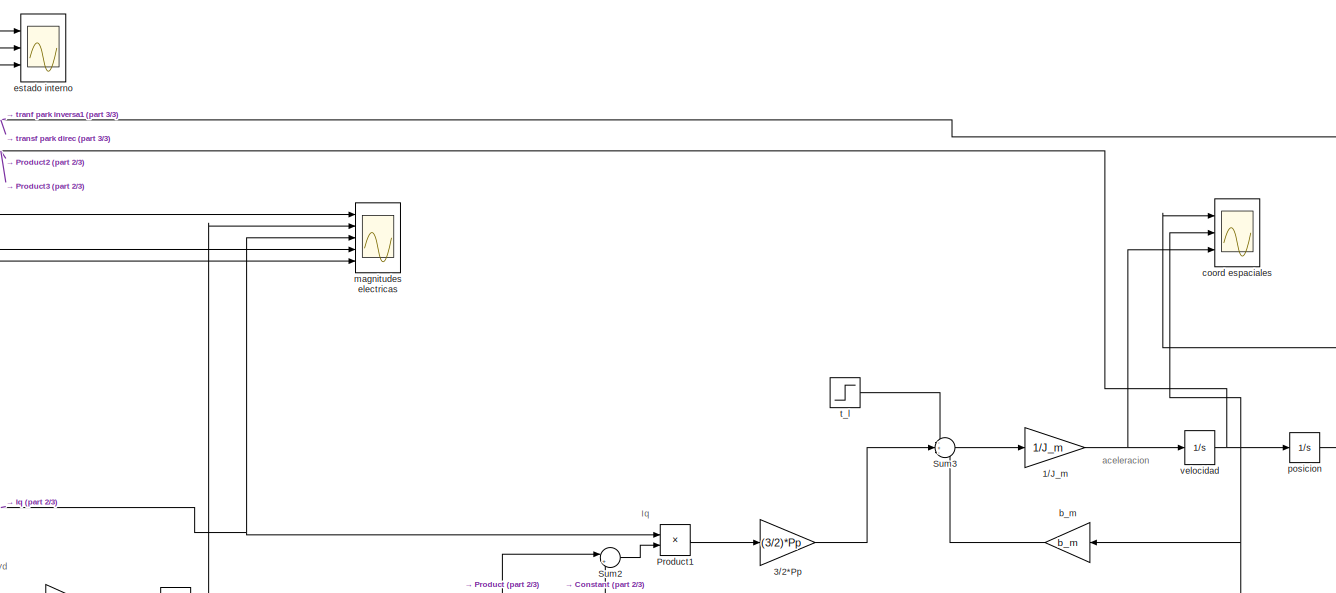
[diagram: root canvas - part 1/3, middle right region]
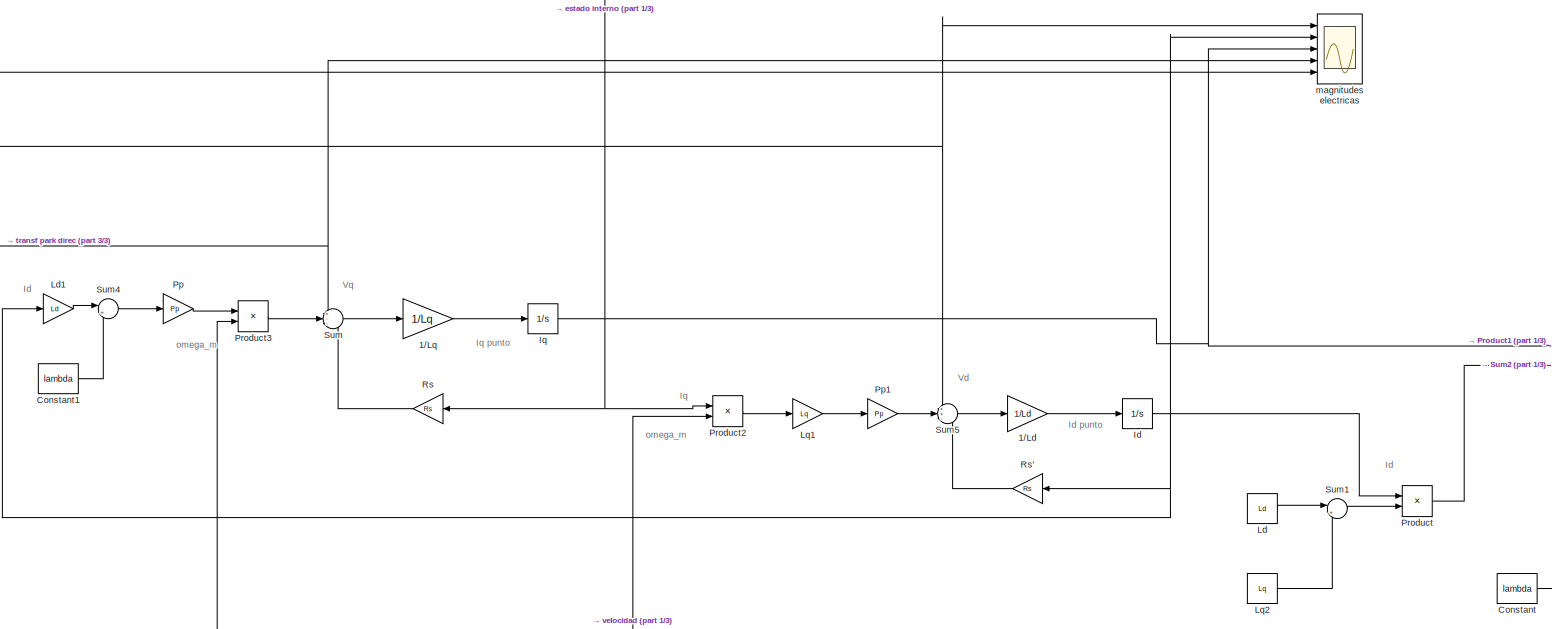
[diagram: root canvas - part 2/3, central region]
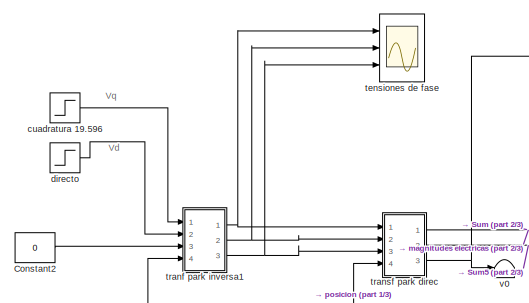
[diagram: root canvas - part 3/3, middle left region]
MODEL slx_2e59009929a7
KIND model
BLOCK [Gain] 1//J_m
  Gain = 1/J_m
  OutDataTypeStr = Inherit: Inherit via internal rule
  ParamDataTypeStr = Inherit: Inherit via internal rule
  SaturateOnIntegerOverflow = off
BLOCK [Gain] 1//Ld
  Gain = 1/Ld
  OutDataTypeStr = Inherit: Inherit via internal rule
  ParamDataTypeStr = Inherit: Inherit via internal rule
  SaturateOnIntegerOverflow = off
BLOCK [Gain] 1//Lq
  Gain = 1/Lq
  OutDataTypeStr = Inherit: Inherit via internal rule
  ParamDataTypeStr = Inherit: Inherit via internal rule
  SaturateOnIntegerOverflow = off
BLOCK [Gain] 3//2*Pp
  Gain = (3/2)*Pp
  OutDataTypeStr = Inherit: Inherit via internal rule
  ParamDataTypeStr = Inherit: Inherit via internal rule
  SaturateOnIntegerOverflow = off
BLOCK [Constant] Constant
  Value = lambda
BLOCK [Constant] Constant1
  Value = lambda
BLOCK [Constant] Constant2
  Value = 0
BLOCK [Integrator] Id
  Ports = [1, 1]
BLOCK [Integrator] Iq
  Ports = [1, 1]
BLOCK [Constant] Ld
  Value = Ld
BLOCK [Gain] Ld1
  Gain = Ld
  OutDataTypeStr = Inherit: Inherit via internal rule
  ParamDataTypeStr = Inherit: Inherit via internal rule
  SaturateOnIntegerOverflow = off
BLOCK [Gain] Lq1
  Gain = Lq
  OutDataTypeStr = Inherit: Inherit via internal rule
  ParamDataTypeStr = Inherit: Inherit via internal rule
  SaturateOnIntegerOverflow = off
BLOCK [Constant] Lq2
  Value = Lq
BLOCK [Gain] Pp
  Gain = Pp
  OutDataTypeStr = Inherit: Inherit via internal rule
  ParamDataTypeStr = Inherit: Inherit via internal rule
  SaturateOnIntegerOverflow = off
BLOCK [Gain] Pp1
  Gain = Pp
  OutDataTypeStr = Inherit: Inherit via internal rule
  ParamDataTypeStr = Inherit: Inherit via internal rule
  SaturateOnIntegerOverflow = off
BLOCK [Product] Product
  InputSameDT = off
  OutDataTypeStr = Inherit: Inherit via internal rule
  Ports = [2, 1]
  SaturateOnIntegerOverflow = off
BLOCK [Product] Product1
  InputSameDT = off
  OutDataTypeStr = Inherit: Inherit via internal rule
  Ports = [2, 1]
  SaturateOnIntegerOverflow = off
BLOCK [Product] Product2
  InputSameDT = off
  OutDataTypeStr = Inherit: Inherit via internal rule
  Ports = [2, 1]
  SaturateOnIntegerOverflow = off
BLOCK [Product] Product3
  InputSameDT = off
  OutDataTypeStr = Inherit: Inherit via internal rule
  Ports = [2, 1]
  SaturateOnIntegerOverflow = off
BLOCK [Gain] Rs
  Gain = Rs
  OutDataTypeStr = Inherit: Inherit via internal rule
  ParamDataTypeStr = Inherit: Inherit via internal rule
  SaturateOnIntegerOverflow = off
BLOCK [Gain] Rs'
  Gain = Rs
  OutDataTypeStr = Inherit: Inherit via internal rule
  ParamDataTypeStr = Inherit: Inherit via internal rule
  SaturateOnIntegerOverflow = off
BLOCK [Sum] Sum
  IconShape = round
  InputSameDT = off
  Inputs = +--
  OutDataTypeStr = Inherit: Inherit via internal rule
  Ports = [3, 1]
  SaturateOnIntegerOverflow = off
BLOCK [Sum] Sum1
  IconShape = round
  InputSameDT = off
  Inputs = |+-
  OutDataTypeStr = Inherit: Inherit via internal rule
  Ports = [2, 1]
  SaturateOnIntegerOverflow = off
BLOCK [Sum] Sum2
  IconShape = round
  InputSameDT = off
  Inputs = |++
  OutDataTypeStr = Inherit: Inherit via internal rule
  Ports = [2, 1]
  SaturateOnIntegerOverflow = off
BLOCK [Sum] Sum3
  IconShape = round
  InputSameDT = off
  Inputs = -+-
  OutDataTypeStr = Inherit: Inherit via internal rule
  Ports = [3, 1]
  SaturateOnIntegerOverflow = off
BLOCK [Sum] Sum4
  IconShape = round
  InputSameDT = off
  Inputs = |++
  OutDataTypeStr = Inherit: Inherit via internal rule
  Ports = [2, 1]
  SaturateOnIntegerOverflow = off
BLOCK [Sum] Sum5
  IconShape = round
  InputSameDT = off
  Inputs = ++-
  OutDataTypeStr = Inherit: Inherit via internal rule
  Ports = [3, 1]
  SaturateOnIntegerOverflow = off
BLOCK [Gain] b_m
  Gain = b_m
  OutDataTypeStr = Inherit: Inherit via internal rule
  ParamDataTypeStr = Inherit: Inherit via internal rule
  SaturateOnIntegerOverflow = off
BLOCK [Scope] coord espaciales
  DataFormat = StructureWithTime
  Floating = off
  LimitDataPoints = off
  MaxDataPoints = 8000
  NumInputPorts = 3
  Ports = [3]
  SampleTime = 0
  SaveName = ScopeData1
  ShowLegends = off
  TimeRange = 12
  YMax = 3000~300~100000
  YMin = -1000~0~-50000
  ZoomMode = yonly
BLOCK [Step] cuadratura 19.596
  After = 19.596
  SampleTime = 0
  Time = 0.1
BLOCK [Step] directo
  After = 0
  SampleTime = 0
BLOCK [Scope] estado interno
  DataFormat = StructureWithTime
  Floating = off
  LimitDataPoints = off
  MaxDataPoints = 8000
  NumInputPorts = 3
  Ports = [3]
  SampleTime = 0
  ShowLegends = off
  TimeRange = 8
  YMax = 3000~400~10
  YMin = -1000~0~-5
  ZoomMode = xonly
BLOCK [Scope] magnitudes electricas
  DataFormat = StructureWithTime
  Floating = off
  LimitDataPoints = off
  MaxDataPoints = 8000
  NumInputPorts = 5
  Ports = [5]
  SampleTime = 0
  SaveName = ScopeData2
  ShowLegends = off
  TimeRange = 8
  YMax = 1~10~10~20~1
  YMin = -1~-3.567183402155509e-28~-10~0~-1
  ZoomMode = yonly
BLOCK [Integrator] posicion
  Ports = [1, 1]
BLOCK [Step] t_l
  After = T_l
  SampleTime = 0
  Time = 0.3
BLOCK [Scope] tensiones de fase
  DataFormat = StructureWithTime
  Floating = off
  LimitDataPoints = off
  MaxDataPoints = 8000
  NumInputPorts = 3
  Ports = [3]
  SampleTime = 0
  SaveName = ScopeData3
  ShowLegends = off
  TimeRange = 8
  YMax = 3000~400~10
  YMin = -1000~0~-5
  ZoomMode = xonly
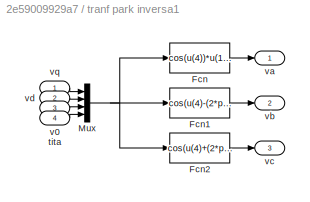
BLOCK [SubSystem] tranf park inversa1
  FunctionWithSeparateData = off
  MaskHideContents = off
  MinAlgLoopOccurrences = off
  Opaque = off
  Ports = [4, 3]
  PropExecContextOutsideSubsystem = off
  RTWSystemCode = Auto
  RequestExecContextInheritance = off
BLOCK [Fcn] tranf park inversa1/Fcn
  Expr = cos(u(4))*u(1)+sin(u(4))*u(2)+u(3)
BLOCK [Fcn] tranf park inversa1/Fcn1
  Expr = cos(u(4)-(2*pi/3))*u(1)+sin(u(4)-(2*pi/3))*u(2)+u(3)
BLOCK [Fcn] tranf park inversa1/Fcn2
  Expr = cos(u(4)+(2*pi/3))*u(1)+sin(u(4)+(2*pi/3))*u(2)+u(3)
BLOCK [Mux] tranf park inversa1/Mux
  DisplayOption = bar
  Ports = [4, 1]
BLOCK [Inport] tranf park inversa1/tita
  IconDisplay = Port number
  Port = 4
BLOCK [Inport] tranf park inversa1/v0
  IconDisplay = Port number
  Port = 3
BLOCK [Outport] tranf park inversa1/va
  IconDisplay = Port number
BLOCK [Outport] tranf park inversa1/vb
  IconDisplay = Port number
  Port = 2
BLOCK [Outport] tranf park inversa1/vc
  IconDisplay = Port number
  Port = 3
BLOCK [Inport] tranf park inversa1/vd
  IconDisplay = Port number
  Port = 2
BLOCK [Inport] tranf park inversa1/vq
  IconDisplay = Port number
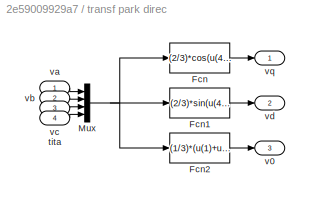
BLOCK [SubSystem] transf park direc
  FunctionWithSeparateData = off
  MaskHideContents = off
  MinAlgLoopOccurrences = off
  Opaque = off
  Ports = [4, 3]
  PropExecContextOutsideSubsystem = off
  RTWSystemCode = Auto
  RequestExecContextInheritance = off
BLOCK [Fcn] transf park direc/Fcn
  Expr = (2/3)*cos(u(4))*u(1)+(2/3)*cos(u(4)-(2*pi/3))*u(2)+(2/3)*cos(u(4)+(2*pi/3))*u(3)
BLOCK [Fcn] transf park direc/Fcn1
  Expr = (2/3)*sin(u(4))*u(1)+(2/3)*sin(u(4)-(2*pi/3))*u(2)+(2/3)*sin(u(4)+(2*pi/3))*u(3)
BLOCK [Fcn] transf park direc/Fcn2
  Expr = (1/3)*(u(1)+u(2)+u(3))
BLOCK [Mux] transf park direc/Mux
  DisplayOption = bar
  Ports = [4, 1]
BLOCK [Inport] transf park direc/tita
  IconDisplay = Port number
  Port = 4
BLOCK [Outport] transf park direc/v0
  IconDisplay = Port number
  Port = 3
BLOCK [Inport] transf park direc/va
  IconDisplay = Port number
BLOCK [Inport] transf park direc/vb
  IconDisplay = Port number
  Port = 2
BLOCK [Inport] transf park direc/vc
  IconDisplay = Port number
  Port = 3
BLOCK [Outport] transf park direc/vd
  IconDisplay = Port number
  Port = 2
BLOCK [Outport] transf park direc/vq
  IconDisplay = Port number
BLOCK [Terminator] v0
BLOCK [Integrator] velocidad
  ContinuousStateAttributes = 'velocidad'
  Ports = [1, 1]
ANNOTATION (root): Id
ANNOTATION (root): Id punto
ANNOTATION (root): Iq
ANNOTATION (root): Iq punto
ANNOTATION (root): Vd
ANNOTATION (root): Vq
ANNOTATION (root): aceleracion
ANNOTATION (root): omega_m
NET 1//J_m:1 -> coord espaciales:3, velocidad:1
LINE 1//Ld:1 -> Id:1
LINE 1//Lq:1 -> Iq:1
LINE 3//2*Pp:1 -> Sum3:2
LINE Constant1:1 -> Sum4:2
LINE Constant2:1 -> tranf park inversa1:3
LINE Constant:1 -> Sum2:2
NET Id:1 -> Ld1:1, Product:1, Rs':1, magnitudes electricas:2
NET Iq:1 -> Product1:1, Product2:1, Rs:1, estado interno:3, magnitudes electricas:3
LINE Ld1:1 -> Sum4:1
LINE Ld:1 -> Sum1:1
LINE Lq1:1 -> Pp1:1
LINE Lq2:1 -> Sum1:2
LINE Pp1:1 -> Sum5:2
LINE Pp:1 -> Product3:1
LINE Product1:1 -> 3//2*Pp:1
LINE Product2:1 -> Lq1:1
LINE Product3:1 -> Sum:2
LINE Product:1 -> Sum2:1
LINE Rs':1 -> Sum5:3
LINE Rs:1 -> Sum:3
LINE Sum1:1 -> Product:2
LINE Sum2:1 -> Product1:2
LINE Sum3:1 -> 1//J_m:1
LINE Sum4:1 -> Pp:1
LINE Sum5:1 -> 1//Ld:1
LINE Sum:1 -> 1//Lq:1
LINE b_m:1 -> Sum3:3
LINE cuadratura 19.596:1 -> tranf park inversa1:1
LINE directo:1 -> tranf park inversa1:2
NET posicion:1 -> coord espaciales:1, estado interno:1, tranf park inversa1:4, transf park direc:4
LINE t_l:1 -> Sum3:1
LINE tranf park inversa1/Fcn1:1 -> tranf park inversa1/vb:1
LINE tranf park inversa1/Fcn2:1 -> tranf park inversa1/vc:1
LINE tranf park inversa1/Fcn:1 -> tranf park inversa1/va:1
NET tranf park inversa1/Mux:1 -> tranf park inversa1/Fcn1:1, tranf park inversa1/Fcn2:1, tranf park inversa1/Fcn:1
LINE tranf park inversa1/tita:1 -> tranf park inversa1/Mux:4
LINE tranf park inversa1/v0:1 -> tranf park inversa1/Mux:3
LINE tranf park inversa1/vd:1 -> tranf park inversa1/Mux:2
LINE tranf park inversa1/vq:1 -> tranf park inversa1/Mux:1
NET tranf park inversa1:1 -> tensiones de fase:1, transf park direc:1
NET tranf park inversa1:2 -> tensiones de fase:2, transf park direc:2
NET tranf park inversa1:3 -> tensiones de fase:3, transf park direc:3
LINE transf park direc/Fcn1:1 -> transf park direc/vd:1
LINE transf park direc/Fcn2:1 -> transf park direc/v0:1
LINE transf park direc/Fcn:1 -> transf park direc/vq:1
NET transf park direc/Mux:1 -> transf park direc/Fcn1:1, transf park direc/Fcn2:1, transf park direc/Fcn:1
LINE transf park direc/tita:1 -> transf park direc/Mux:4
LINE transf park direc/va:1 -> transf park direc/Mux:1
LINE transf park direc/vb:1 -> transf park direc/Mux:2
LINE transf park direc/vc:1 -> transf park direc/Mux:3
NET transf park direc:1 -> Sum:1, magnitudes electricas:4
NET transf park direc:2 -> Sum5:1, magnitudes electricas:1
NET transf park direc:3 -> magnitudes electricas:5, v0:1
NET velocidad:1 -> Product2:2, Product3:2, b_m:1, coord espaciales:2, estado interno:2, posicion:1
note: NET lines group one-source signal fan-out (src -> all destinations, sorted); 1:1 wires keep LINE
